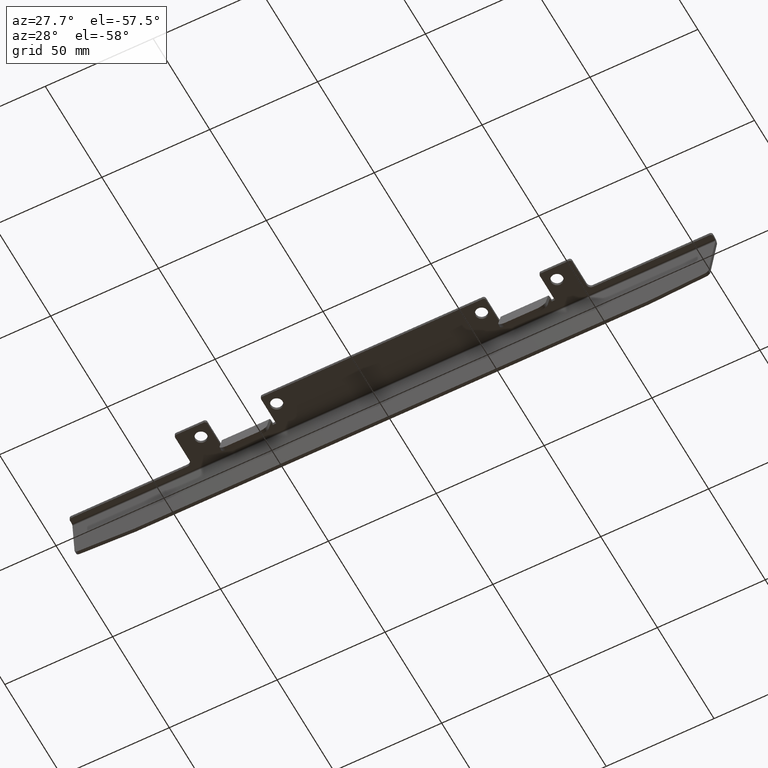
[diagram: clean part render]
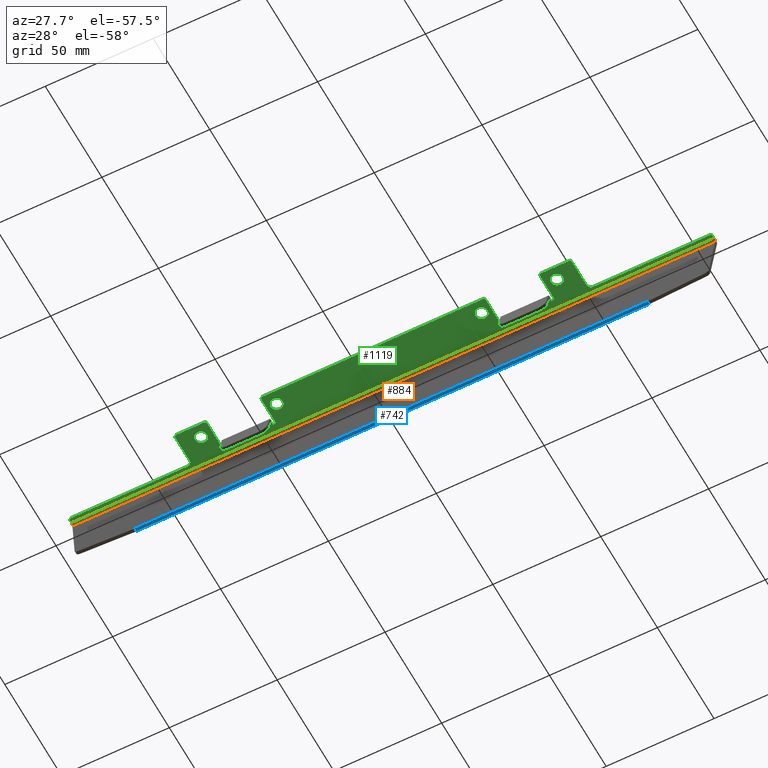
[diagram: same view with three faces highlighted in distinct colors, each labeled with its STEP entity id]
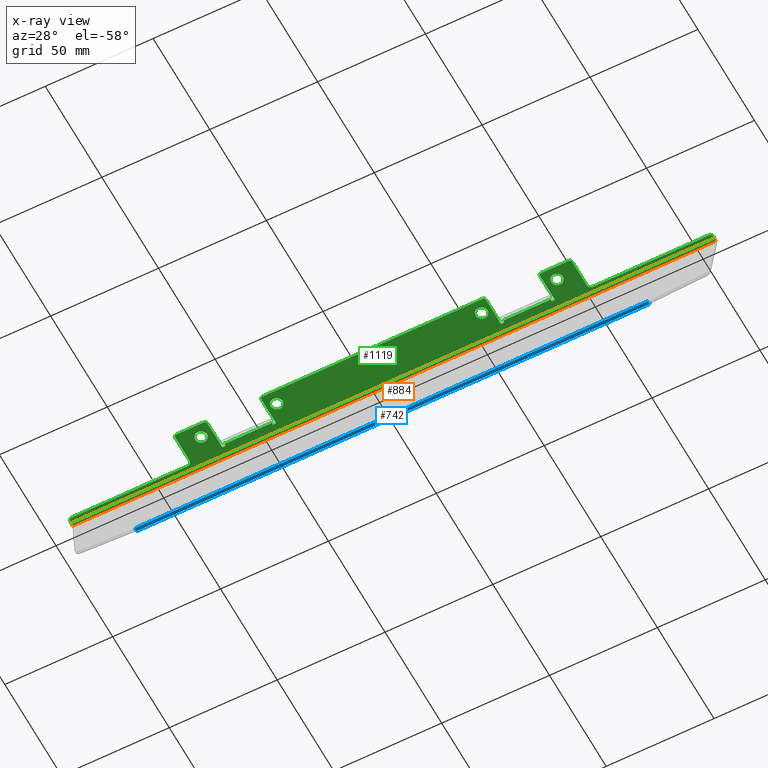
[diagram: x-ray of the same camera — body ghosted, the three highlighted faces saturated]
A machine part, auxiliary view with three faces highlighted in distinct colors.
The next image is the same camera in x-ray (body ghosted, the three faces saturated) — at least one of them is partly hidden behind the body in this view.
Their STEP definitions:

[orange] entity #884 — the highlighted cylindrical surface (edge-blend (fillet) strip) has radius 1 mm, axis along (1, 0, 0).
#21 = EDGE_CURVE ( 'NONE', #1636, #414, #155, .T. ) ;
#98 = LINE ( 'NONE', #460, #1923 ) ;
#148 = CIRCLE ( 'NONE', #2082, 1.000000000000002200 ) ;
#155 = CIRCLE ( 'NONE', #1766, 1.000000000000002200 ) ;
#414 = VERTEX_POINT ( 'NONE', #709 ) ;
#460 = CARTESIAN_POINT ( 'NONE',  ( -149.0000000000000000, 12.56815404527024600, -2.587155742747654100 ) ) ;
#609 = EDGE_CURVE ( 'NONE', #2408, #1636, #98, .T. ) ;
#666 = DIRECTION ( 'NONE',  ( 0.0000000000000000000, 0.0000000000000000000, -1.000000000000000000 ) ) ;
#688 = DIRECTION ( 'NONE',  ( 1.000000000000000000, 0.0000000000000000000, 0.0000000000000000000 ) ) ;
#707 = DIRECTION ( 'NONE',  ( 0.0000000000000000000, 0.9961946980917457700, -0.08715574274765462700 ) ) ;
#709 = CARTESIAN_POINT ( 'NONE',  ( 148.9999999999999400, 11.57195934717849700, -1.499999999999998400 ) ) ;
#761 = CARTESIAN_POINT ( 'NONE',  ( -149.0000000000000000, 11.57195934717849500, -1.500000000000000000 ) ) ;
#789 = ORIENTED_EDGE ( 'NONE', *, *, #2070, .T. ) ;
#790 = CYLINDRICAL_SURFACE ( 'NONE', #2143, 1.000000000000002400 ) ;
#884 = ADVANCED_FACE ( 'NONE', ( #1648 ), #790, .F. ) ;
#947 = DIRECTION ( 'NONE',  ( -1.000000000000000000, -0.0000000000000000000, -0.0000000000000000000 ) ) ;
#986 = DIRECTION ( 'NONE',  ( 1.000000000000000000, 0.0000000000000000000, 0.0000000000000000000 ) ) ;
#993 = DIRECTION ( 'NONE',  ( 0.0000000000000000000, 0.0000000000000000000, -1.000000000000000000 ) ) ;
#1014 = EDGE_LOOP ( 'NONE', ( #789, #2096, #1153, #1717 ) ) ;
#1035 = CARTESIAN_POINT ( 'NONE',  ( 149.0000000000000300, 12.56815404527024800, -2.587155742747656800 ) ) ;
#1153 = ORIENTED_EDGE ( 'NONE', *, *, #609, .T. ) ;
#1165 = VERTEX_POINT ( 'NONE', #2238 ) ;
#1447 = VECTOR ( 'NONE', #947, 1000.000000000000000 ) ;
#1510 = LINE ( 'NONE', #761, #1447 ) ;
#1623 = EDGE_CURVE ( 'NONE', #1165, #2408, #148, .T. ) ;
#1636 = VERTEX_POINT ( 'NONE', #1035 ) ;
#1648 = FACE_OUTER_BOUND ( 'NONE', #1014, .T. ) ;
#1717 = ORIENTED_EDGE ( 'NONE', *, *, #21, .T. ) ;
#1754 = CARTESIAN_POINT ( 'NONE',  ( 148.9999999999999400, 11.57195934717849700, -2.500000000000000400 ) ) ;
#1766 = AXIS2_PLACEMENT_3D ( 'NONE', #1754, #986, #993 ) ;
#1923 = VECTOR ( 'NONE', #2153, 1000.000000000000000 ) ;
#1978 = CARTESIAN_POINT ( 'NONE',  ( -149.0000000000000000, 12.56815404527024600, -2.587155742747655500 ) ) ;
#2002 = CARTESIAN_POINT ( 'NONE',  ( -149.0000000000000000, 11.57195934717849700, -2.500000000000000400 ) ) ;
#2014 = CARTESIAN_POINT ( 'NONE',  ( 149.0000000000000000, 11.57195934717849700, -2.500000000000000400 ) ) ;
#2070 = EDGE_CURVE ( 'NONE', #414, #1165, #1510, .T. ) ;
#2082 = AXIS2_PLACEMENT_3D ( 'NONE', #2002, #2179, #666 ) ;
#2096 = ORIENTED_EDGE ( 'NONE', *, *, #1623, .T. ) ;
#2143 = AXIS2_PLACEMENT_3D ( 'NONE', #2014, #688, #707 ) ;
#2153 = DIRECTION ( 'NONE',  ( 1.000000000000000000, -1.010844195836927400E-018, -1.155400202835925200E-017 ) ) ;
#2179 = DIRECTION ( 'NONE',  ( -1.000000000000000000, -0.0000000000000000000, -0.0000000000000000000 ) ) ;
#2238 = CARTESIAN_POINT ( 'NONE',  ( -149.0000000000000000, 11.57195934717849700, -1.499999999999998400 ) ) ;
#2408 = VERTEX_POINT ( 'NONE', #1978 ) ;

[blue] entity #742 — the highlighted planar face has unit normal (-0, 0.0872, 0.9962).
#16 = EDGE_LOOP ( 'NONE', ( #1819, #588, #1102, #449 ) ) ;
#300 = EDGE_CURVE ( 'NONE', #1194, #1391, #1133, .T. ) ;
#449 = ORIENTED_EDGE ( 'NONE', *, *, #300, .T. ) ;
#486 = CARTESIAN_POINT ( 'NONE',  ( -118.9126781141829100, 11.68233680135199200, -29.92266303992706300 ) ) ;
#588 = ORIENTED_EDGE ( 'NONE', *, *, #1009, .T. ) ;
#620 = CARTESIAN_POINT ( 'NONE',  ( -118.9126781141829100, 10.18804475421436900, -29.79192942580558400 ) ) ;
#646 = VECTOR ( 'NONE', #1063, 1000.000000000000000 ) ;
#742 = ADVANCED_FACE ( 'NONE', ( #1745 ), #2255, .F. ) ;
#758 = DIRECTION ( 'NONE',  ( -1.000000000000000000, 0.0000000000000000000, 0.0000000000000000000 ) ) ;
#1009 = EDGE_CURVE ( 'NONE', #1246, #1551, #1992, .T. ) ;
#1063 = DIRECTION ( 'NONE',  ( -1.000000000000000000, -0.0000000000000000000, -0.0000000000000000000 ) ) ;
#1102 = ORIENTED_EDGE ( 'NONE', *, *, #1127, .F. ) ;
#1127 = EDGE_CURVE ( 'NONE', #1194, #1551, #1562, .T. ) ;
#1133 = LINE ( 'NONE', #1942, #1777 ) ;
#1194 = VERTEX_POINT ( 'NONE', #2072 ) ;
#1246 = VERTEX_POINT ( 'NONE', #620 ) ;
#1391 = VERTEX_POINT ( 'NONE', #2344 ) ;
#1551 = VERTEX_POINT ( 'NONE', #486 ) ;
#1555 = AXIS2_PLACEMENT_3D ( 'NONE', #2423, #1678, #1705 ) ;
#1562 = LINE ( 'NONE', #1889, #2318 ) ;
#1678 = DIRECTION ( 'NONE',  ( -0.0000000000000000000, 0.08715574274765483500, 0.9961946980917458800 ) ) ;
#1705 = DIRECTION ( 'NONE',  ( 0.0000000000000000000, -0.9961946980917457700, 0.08715574274765482100 ) ) ;
#1715 = EDGE_CURVE ( 'NONE', #1391, #1246, #1935, .T. ) ;
#1719 = DIRECTION ( 'NONE',  ( -3.184595155822318500E-016, -0.9961946980917457700, 0.08715574274765482100 ) ) ;
#1745 = FACE_OUTER_BOUND ( 'NONE', #16, .T. ) ;
#1777 = VECTOR ( 'NONE', #1719, 1000.000000000000100 ) ;
#1819 = ORIENTED_EDGE ( 'NONE', *, *, #1715, .T. ) ;
#1838 = CARTESIAN_POINT ( 'NONE',  ( -118.9126781141829100, 11.68233680135198900, -29.92266303992706600 ) ) ;
#1889 = CARTESIAN_POINT ( 'NONE',  ( 0.0000000000000000000, 11.68233680135199200, -29.92266303992706300 ) ) ;
#1935 = LINE ( 'NONE', #2196, #646 ) ;
#1942 = CARTESIAN_POINT ( 'NONE',  ( 118.9126781141828500, 10.18804475421436900, -29.79192942580558400 ) ) ;
#1992 = LINE ( 'NONE', #1838, #2112 ) ;
#2072 = CARTESIAN_POINT ( 'NONE',  ( 118.9126781141828500, 11.68233680135199200, -29.92266303992706300 ) ) ;
#2112 = VECTOR ( 'NONE', #2215, 1000.000000000000100 ) ;
#2196 = CARTESIAN_POINT ( 'NONE',  ( -149.0000000000000000, 10.18804475421436900, -29.79192942580558400 ) ) ;
#2215 = DIRECTION ( 'NONE',  ( -3.184595155822318500E-016, 0.9961946980917457700, -0.08715574274765482100 ) ) ;
#2255 = PLANE ( 'NONE',  #1555 ) ;
#2318 = VECTOR ( 'NONE', #758, 1000.000000000000000 ) ;
#2344 = CARTESIAN_POINT ( 'NONE',  ( 118.9126781141828500, 10.18804475421436900, -29.79192942580558400 ) ) ;
#2423 = CARTESIAN_POINT ( 'NONE',  ( -149.0000000000000000, 11.68233680135198700, -29.92266303992706600 ) ) ;

[green] entity #1119 — the highlighted planar face has unit normal (0, -0, 1).
#17 = VERTEX_POINT ( 'NONE', #2297 ) ;
#33 = EDGE_CURVE ( 'NONE', #17, #414, #2242, .T. ) ;
#34 = VERTEX_POINT ( 'NONE', #1914 ) ;
#37 = ORIENTED_EDGE ( 'NONE', *, *, #369, .F. ) ;
#38 = CARTESIAN_POINT ( 'NONE',  ( -91.00000000000000000, -5.318040652821458100, -1.500000000000000000 ) ) ;
#44 = ORIENTED_EDGE ( 'NONE', *, *, #1509, .T. ) ;
#46 = DIRECTION ( 'NONE',  ( -0.0000000000000000000, 0.0000000000000000000, -1.000000000000000000 ) ) ;
#47 = EDGE_CURVE ( 'NONE', #535, #1696, #231, .T. ) ;
#75 = VERTEX_POINT ( 'NONE', #812 ) ;
#88 = VERTEX_POINT ( 'NONE', #2309 ) ;
#89 = AXIS2_PLACEMENT_3D ( 'NONE', #1502, #1689, #1870 ) ;
#93 = VERTEX_POINT ( 'NONE', #1957 ) ;
#102 = CARTESIAN_POINT ( 'NONE',  ( 52.09999999999999400, -6.318040652821459000, -1.500000000000000000 ) ) ;
#103 = VERTEX_POINT ( 'NONE', #1786 ) ;
#118 = AXIS2_PLACEMENT_3D ( 'NONE', #928, #1505, #2254 ) ;
#119 = DIRECTION ( 'NONE',  ( 1.000000000000000000, -0.0000000000000000000, -0.0000000000000000000 ) ) ;
#133 = AXIS2_PLACEMENT_3D ( 'NONE', #1432, #1262, #505 ) ;
#150 = EDGE_CURVE ( 'NONE', #280, #1553, #1572, .T. ) ;
#153 = CARTESIAN_POINT ( 'NONE',  ( 52.09999999999999400, 7.871959347178525400, -1.500000000000000000 ) ) ;
#156 = CARTESIAN_POINT ( 'NONE',  ( 78.09999999999999400, -5.318040652821459000, -1.500000000000000000 ) ) ;
#165 = VERTEX_POINT ( 'NONE', #1405 ) ;
#170 = EDGE_LOOP ( 'NONE', ( #413, #1593 ) ) ;
#171 = EDGE_LOOP ( 'NONE', ( #1904, #1163 ) ) ;
#174 = DIRECTION ( 'NONE',  ( -0.0000000000000000000, -1.000000000000000000, -0.0000000000000000000 ) ) ;
#190 = ORIENTED_EDGE ( 'NONE', *, *, #1837, .T. ) ;
#200 = VECTOR ( 'NONE', #2032, 1000.000000000000000 ) ;
#210 = CARTESIAN_POINT ( 'NONE',  ( 51.09999999999999400, -5.318040652821459000, -1.500000000000000000 ) ) ;
#220 = DIRECTION ( 'NONE',  ( 1.000000000000000000, -0.0000000000000000000, -0.0000000000000000000 ) ) ;
#222 = VERTEX_POINT ( 'NONE', #1770 ) ;
#231 = LINE ( 'NONE', #1936, #796 ) ;
#241 = LINE ( 'NONE', #1997, #661 ) ;
#244 = CARTESIAN_POINT ( 'NONE',  ( 77.09999999999999400, -5.318040652821459000, -1.500000000000000000 ) ) ;
#247 = ORIENTED_EDGE ( 'NONE', *, *, #33, .F. ) ;
#251 = CARTESIAN_POINT ( 'NONE',  ( -82.49999999999998600, -0.5280406528214614000, -1.500000000000000000 ) ) ;
#268 = CARTESIAN_POINT ( 'NONE',  ( 92.00000000000000000, -5.318040652821459900, -1.500000000000000000 ) ) ;
#278 = EDGE_LOOP ( 'NONE', ( #190, #1675 ) ) ;
#280 = VERTEX_POINT ( 'NONE', #1245 ) ;
#281 = DIRECTION ( 'NONE',  ( 1.000000000000000000, 0.0000000000000000000, 0.0000000000000000000 ) ) ;
#286 = CIRCLE ( 'NONE', #1420, 1.000000000000000900 ) ;
#290 = FACE_BOUND ( 'NONE', #1733, .T. ) ;
#291 = DIRECTION ( 'NONE',  ( 0.0000000000000000000, 1.000000000000000000, 0.0000000000000000000 ) ) ;
#332 = EDGE_CURVE ( 'NONE', #535, #1376, #1872, .T. ) ;
#333 = VERTEX_POINT ( 'NONE', #532 ) ;
#335 = ORIENTED_EDGE ( 'NONE', *, *, #2070, .F. ) ;
#343 = VERTEX_POINT ( 'NONE', #1273 ) ;
#345 = DIRECTION ( 'NONE',  ( 1.000000000000000000, 0.0000000000000000000, 0.0000000000000000000 ) ) ;
#348 = VERTEX_POINT ( 'NONE', #1470 ) ;
#349 = CARTESIAN_POINT ( 'NONE',  ( 93.99999999999998600, 9.471959347178485100, -1.500000000000000000 ) ) ;
#352 = CARTESIAN_POINT ( 'NONE',  ( 91.00000000000000000, -5.318040652821459900, -1.500000000000000000 ) ) ;
#353 = EDGE_CURVE ( 'NONE', #1553, #75, #241, .T. ) ;
#354 = LINE ( 'NONE', #1976, #619 ) ;
#355 = CIRCLE ( 'NONE', #1121, 1.000000000000000900 ) ;
#369 = EDGE_CURVE ( 'NONE', #1085, #34, #2227, .T. ) ;
#380 = ORIENTED_EDGE ( 'NONE', *, *, #2285, .F. ) ;
#384 = DIRECTION ( 'NONE',  ( 0.0000000000000000000, -1.000000000000000000, 0.0000000000000000000 ) ) ;
#391 = LINE ( 'NONE', #1639, #717 ) ;
#394 = CARTESIAN_POINT ( 'NONE',  ( -91.99999999999998600, 9.471959347178485100, -1.500000000000000000 ) ) ;
#399 = ORIENTED_EDGE ( 'NONE', *, *, #150, .F. ) ;
#413 = ORIENTED_EDGE ( 'NONE', *, *, #906, .T. ) ;
#414 = VERTEX_POINT ( 'NONE', #709 ) ;
#418 = DIRECTION ( 'NONE',  ( 0.0000000000000000000, 1.000000000000000000, 0.0000000000000000000 ) ) ;
#448 = EDGE_CURVE ( 'NONE', #1571, #333, #1214, .T. ) ;
#456 = ORIENTED_EDGE ( 'NONE', *, *, #1525, .F. ) ;
#457 = LINE ( 'NONE', #931, #2401 ) ;
#466 = EDGE_CURVE ( 'NONE', #614, #1367, #658, .T. ) ;
#475 = LINE ( 'NONE', #989, #2384 ) ;
#476 = DIRECTION ( 'NONE',  ( 1.000000000000000000, 0.0000000000000000000, 0.0000000000000000000 ) ) ;
#484 = CARTESIAN_POINT ( 'NONE',  ( -148.0000000000000000, 10.47195934717849800, -1.500000000000000000 ) ) ;
#498 = CARTESIAN_POINT ( 'NONE',  ( -92.00000000000000000, -5.318040652821456300, -1.500000000000000000 ) ) ;
#499 = EDGE_CURVE ( 'NONE', #1596, #1439, #1865, .T. ) ;
#500 = CARTESIAN_POINT ( 'NONE',  ( 51.09999999999999400, -6.318040652821462500, -1.500000000000000000 ) ) ;
#505 = DIRECTION ( 'NONE',  ( 1.000000000000000000, 0.0000000000000000000, 0.0000000000000000000 ) ) ;
#506 = LINE ( 'NONE', #1537, #677 ) ;
#517 = CARTESIAN_POINT ( 'NONE',  ( -85.24999999999997200, -0.5280406528214610700, -1.500000000000000000 ) ) ;
#523 = VERTEX_POINT ( 'NONE', #1848 ) ;
#524 = VECTOR ( 'NONE', #1974, 1000.000000000000000 ) ;
#532 = CARTESIAN_POINT ( 'NONE',  ( -75.59999999999998000, 6.871959347178529900, -1.499999999999996200 ) ) ;
#533 = EDGE_CURVE ( 'NONE', #2134, #93, #901, .T. ) ;
#535 = VERTEX_POINT ( 'NONE', #1488 ) ;
#539 = EDGE_CURVE ( 'NONE', #1047, #280, #1546, .T. ) ;
#547 = DIRECTION ( 'NONE',  ( 0.0000000000000000000, 0.0000000000000000000, 1.000000000000000000 ) ) ;
#556 = ORIENTED_EDGE ( 'NONE', *, *, #2084, .F. ) ;
#560 = ORIENTED_EDGE ( 'NONE', *, *, #1512, .F. ) ;
#563 = DIRECTION ( 'NONE',  ( 1.000000000000000000, 0.0000000000000000000, 0.0000000000000000000 ) ) ;
#571 = LINE ( 'NONE', #1875, #1739 ) ;
#579 = EDGE_CURVE ( 'NONE', #348, #103, #1600, .T. ) ;
#584 = LINE ( 'NONE', #1688, #1524 ) ;
#593 = CIRCLE ( 'NONE', #806, 2.750000000000009300 ) ;
#602 = AXIS2_PLACEMENT_3D ( 'NONE', #1419, #1205, #281 ) ;
#603 = VERTEX_POINT ( 'NONE', #1386 ) ;
#614 = VERTEX_POINT ( 'NONE', #268 ) ;
#619 = VECTOR ( 'NONE', #1227, 1000.000000000000000 ) ;
#630 = DIRECTION ( 'NONE',  ( 1.000000000000000000, -3.329603600723238800E-017, -0.0000000000000000000 ) ) ;
#641 = DIRECTION ( 'NONE',  ( 1.000000000000000000, 0.0000000000000000000, 0.0000000000000000000 ) ) ;
#658 = CIRCLE ( 'NONE', #1113, 1.000000000000000900 ) ;
#659 = DIRECTION ( 'NONE',  ( -0.0000000000000000000, 0.0000000000000000000, -1.000000000000000000 ) ) ;
#660 = ORIENTED_EDGE ( 'NONE', *, *, #2361, .F. ) ;
#661 = VECTOR ( 'NONE', #119, 1000.000000000000000 ) ;
#663 = DIRECTION ( 'NONE',  ( 1.000000000000000000, 0.0000000000000000000, 0.0000000000000000000 ) ) ;
#671 = CARTESIAN_POINT ( 'NONE',  ( 52.09999999999999400, -5.318040652821459000, -1.500000000000000000 ) ) ;
#672 = ORIENTED_EDGE ( 'NONE', *, *, #2211, .F. ) ;
#673 = CIRCLE ( 'NONE', #1353, 2.000000000000001800 ) ;
#677 = VECTOR ( 'NONE', #220, 1000.000000000000000 ) ;
#678 = FACE_BOUND ( 'NONE', #170, .T. ) ;
#681 = EDGE_CURVE ( 'NONE', #1165, #93, #584, .T. ) ;
#699 = EDGE_CURVE ( 'NONE', #1314, #1322, #2363, .T. ) ;
#704 = EDGE_CURVE ( 'NONE', #2080, #1047, #457, .T. ) ;
#709 = CARTESIAN_POINT ( 'NONE',  ( 148.9999999999999400, 11.57195934717849700, -1.499999999999998400 ) ) ;
#717 = VECTOR ( 'NONE', #1627, 1000.000000000000000 ) ;
#732 = CARTESIAN_POINT ( 'NONE',  ( 53.59999999999999400, 6.871959347178529900, -1.499999999999996200 ) ) ;
#741 = CARTESIAN_POINT ( 'NONE',  ( -93.99999999999998600, 7.471959347178486000, -1.500000000000000000 ) ) ;
#759 = AXIS2_PLACEMENT_3D ( 'NONE', #251, #1050, #855 ) ;
#761 = CARTESIAN_POINT ( 'NONE',  ( -149.0000000000000000, 11.57195934717849500, -1.500000000000000000 ) ) ;
#762 = ORIENTED_EDGE ( 'NONE', *, *, #2178, .F. ) ;
#763 = VECTOR ( 'NONE', #1825, 1000.000000000000000 ) ;
#771 = CIRCLE ( 'NONE', #602, 2.749999999999988500 ) ;
#772 = VECTOR ( 'NONE', #1586, 1000.000000000000000 ) ;
#778 = CARTESIAN_POINT ( 'NONE',  ( 79.75000000000000000, -0.5280406528214610700, -1.500000000000000000 ) ) ;
#785 = CARTESIAN_POINT ( 'NONE',  ( -53.59999999999999400, 6.871959347178530700, -1.500000000000000000 ) ) ;
#795 = CARTESIAN_POINT ( 'NONE',  ( 85.24999999999997200, -0.5280406528214614000, -1.500000000000000000 ) ) ;
#796 = VECTOR ( 'NONE', #630, 1000.000000000000000 ) ;
#806 = AXIS2_PLACEMENT_3D ( 'NONE', #2220, #547, #1090 ) ;
#812 = CARTESIAN_POINT ( 'NONE',  ( 77.09999999999999400, 7.871959347178525400, -1.500000000000000000 ) ) ;
#819 = CARTESIAN_POINT ( 'NONE',  ( 149.0000000000000000, 11.57195934717849500, -1.500000000000000000 ) ) ;
#820 = EDGE_CURVE ( 'NONE', #88, #1785, #1951, .T. ) ;
#827 = ORIENTED_EDGE ( 'NONE', *, *, #1940, .T. ) ;
#842 = CARTESIAN_POINT ( 'NONE',  ( -47.49999999999998600, -0.4280406528214620300, -1.500000000000000000 ) ) ;
#843 = VERTEX_POINT ( 'NONE', #2277 ) ;
#845 = ORIENTED_EDGE ( 'NONE', *, *, #2272, .F. ) ;
#855 = DIRECTION ( 'NONE',  ( -1.000000000000000000, 0.0000000000000000000, 0.0000000000000000000 ) ) ;
#865 = VECTOR ( 'NONE', #1299, 1000.000000000000000 ) ;
#883 = VECTOR ( 'NONE', #1602, 1000.000000000000000 ) ;
#892 = AXIS2_PLACEMENT_3D ( 'NONE', #484, #659, #476 ) ;
#901 = CIRCLE ( 'NONE', #892, 1.000000000000000900 ) ;
#906 = EDGE_CURVE ( 'NONE', #1850, #1070, #1147, .T. ) ;
#914 = CARTESIAN_POINT ( 'NONE',  ( 82.49999999999998600, -0.5280406528214614000, -1.500000000000000000 ) ) ;
#928 = CARTESIAN_POINT ( 'NONE',  ( 0.0000000000000000000, 0.0000000000000000000, -1.500000000000000000 ) ) ;
#931 = CARTESIAN_POINT ( 'NONE',  ( 53.59999999999999400, 6.871959347178530700, -1.500000000000000000 ) ) ;
#947 = DIRECTION ( 'NONE',  ( -1.000000000000000000, -0.0000000000000000000, -0.0000000000000000000 ) ) ;
#949 = CIRCLE ( 'NONE', #2057, 1.000000000000000900 ) ;
#960 = DIRECTION ( 'NONE',  ( 0.0000000000000000000, 1.000000000000000000, 0.0000000000000000000 ) ) ;
#963 = ORIENTED_EDGE ( 'NONE', *, *, #1924, .F. ) ;
#968 = ORIENTED_EDGE ( 'NONE', *, *, #448, .F. ) ;
#971 = LINE ( 'NONE', #2321, #772 ) ;
#973 = CARTESIAN_POINT ( 'NONE',  ( -52.09999999999999400, -5.318040652821462500, -1.500000000000000000 ) ) ;
#979 = AXIS2_PLACEMENT_3D ( 'NONE', #1822, #2397, #1046 ) ;
#983 = EDGE_CURVE ( 'NONE', #88, #843, #673, .T. ) ;
#989 = CARTESIAN_POINT ( 'NONE',  ( -52.09999999999999400, 7.871959347178525400, -1.500000000000000000 ) ) ;
#999 = AXIS2_PLACEMENT_3D ( 'NONE', #1039, #1237, #663 ) ;
#1003 = CARTESIAN_POINT ( 'NONE',  ( 53.59999999999999400, 6.871959347178530700, -1.500000000000000000 ) ) ;
#1012 = AXIS2_PLACEMENT_3D ( 'NONE', #156, #1478, #345 ) ;
#1016 = DIRECTION ( 'NONE',  ( -0.0000000000000000000, 0.0000000000000000000, -1.000000000000000000 ) ) ;
#1019 = ORIENTED_EDGE ( 'NONE', *, *, #1336, .F. ) ;
#1030 = ORIENTED_EDGE ( 'NONE', *, *, #1281, .T. ) ;
#1039 = CARTESIAN_POINT ( 'NONE',  ( 93.99999999999998600, 7.471959347178486000, -1.500000000000000000 ) ) ;
#1046 = DIRECTION ( 'NONE',  ( 1.000000000000000000, 0.0000000000000000000, 0.0000000000000000000 ) ) ;
#1047 = VERTEX_POINT ( 'NONE', #732 ) ;
#1050 = DIRECTION ( 'NONE',  ( 0.0000000000000000000, 0.0000000000000000000, 1.000000000000000000 ) ) ;
#1055 = DIRECTION ( 'NONE',  ( -1.000000000000000000, 0.0000000000000000000, 0.0000000000000000000 ) ) ;
#1061 = FACE_BOUND ( 'NONE', #171, .T. ) ;
#1070 = VERTEX_POINT ( 'NONE', #517 ) ;
#1071 = CARTESIAN_POINT ( 'NONE',  ( -82.49999999999998600, -0.5280406528214614000, -1.500000000000000000 ) ) ;
#1085 = VERTEX_POINT ( 'NONE', #349 ) ;
#1090 = DIRECTION ( 'NONE',  ( 1.000000000000000000, 0.0000000000000000000, 0.0000000000000000000 ) ) ;
#1100 = ORIENTED_EDGE ( 'NONE', *, *, #499, .T. ) ;
#1112 = VERTEX_POINT ( 'NONE', #1703 ) ;
#1113 = AXIS2_PLACEMENT_3D ( 'NONE', #352, #2228, #2409 ) ;
#1117 = CARTESIAN_POINT ( 'NONE',  ( -79.75000000000000000, -0.5280406528214614000, -1.500000000000000000 ) ) ;
#1119 = ADVANCED_FACE ( 'NONE', ( #678, #2064, #290, #1061, #1884 ), #2055, .F. ) ;
#1121 = AXIS2_PLACEMENT_3D ( 'NONE', #38, #46, #1368 ) ;
#1122 = LINE ( 'NONE', #1952, #883 ) ;
#1147 = CIRCLE ( 'NONE', #2101, 2.749999999999988500 ) ;
#1155 = EDGE_CURVE ( 'NONE', #523, #1571, #571, .T. ) ;
#1157 = DIRECTION ( 'NONE',  ( 1.000000000000000000, -5.821219718042973500E-017, 0.0000000000000000000 ) ) ;
#1163 = ORIENTED_EDGE ( 'NONE', *, *, #2299, .T. ) ;
#1165 = VERTEX_POINT ( 'NONE', #2238 ) ;
#1166 = ORIENTED_EDGE ( 'NONE', *, *, #579, .T. ) ;
#1174 = DIRECTION ( 'NONE',  ( 1.000000000000000000, -0.0000000000000000000, -0.0000000000000000000 ) ) ;
#1197 = EDGE_CURVE ( 'NONE', #603, #523, #1449, .T. ) ;
#1203 = CARTESIAN_POINT ( 'NONE',  ( 75.59999999999998000, 6.871959347178530700, -1.500000000000000000 ) ) ;
#1205 = DIRECTION ( 'NONE',  ( 0.0000000000000000000, 0.0000000000000000000, 1.000000000000000000 ) ) ;
#1214 = LINE ( 'NONE', #2027, #865 ) ;
#1227 = DIRECTION ( 'NONE',  ( -0.0000000000000000000, -1.000000000000000000, -0.0000000000000000000 ) ) ;
#1231 = VECTOR ( 'NONE', #1986, 1000.000000000000000 ) ;
#1237 = DIRECTION ( 'NONE',  ( 0.0000000000000000000, -0.0000000000000000000, 1.000000000000000000 ) ) ;
#1245 = CARTESIAN_POINT ( 'NONE',  ( 75.59999999999998000, 6.871959347178529900, -1.500000000000002700 ) ) ;
#1262 = DIRECTION ( 'NONE',  ( -0.0000000000000000000, 0.0000000000000000000, -1.000000000000000000 ) ) ;
#1264 = VECTOR ( 'NONE', #960, 1000.000000000000000 ) ;
#1272 = VERTEX_POINT ( 'NONE', #1920 ) ;
#1273 = CARTESIAN_POINT ( 'NONE',  ( -78.09999999999999400, -6.318040652821459000, -1.500000000000000000 ) ) ;
#1281 = EDGE_CURVE ( 'NONE', #1529, #1696, #2386, .T. ) ;
#1285 = AXIS2_PLACEMENT_3D ( 'NONE', #842, #1793, #1415 ) ;
#1294 = VECTOR ( 'NONE', #291, 1000.000000000000000 ) ;
#1299 = DIRECTION ( 'NONE',  ( -0.0000000000000000000, -1.000000000000000000, -0.0000000000000000000 ) ) ;
#1304 = AXIS2_PLACEMENT_3D ( 'NONE', #210, #1564, #1346 ) ;
#1314 = VERTEX_POINT ( 'NONE', #795 ) ;
#1321 = DIRECTION ( 'NONE',  ( 1.000000000000000000, 0.0000000000000000000, 0.0000000000000000000 ) ) ;
#1322 = VERTEX_POINT ( 'NONE', #778 ) ;
#1324 = CARTESIAN_POINT ( 'NONE',  ( -53.59999999999999400, 6.871959347178529900, -1.500000000000002700 ) ) ;
#1325 = ORIENTED_EDGE ( 'NONE', *, *, #2155, .T. ) ;
#1336 = EDGE_CURVE ( 'NONE', #2008, #165, #2208, .T. ) ;
#1338 = ORIENTED_EDGE ( 'NONE', *, *, #47, .F. ) ;
#1346 = DIRECTION ( 'NONE',  ( 1.000000000000000000, 0.0000000000000000000, 0.0000000000000000000 ) ) ;
#1353 = AXIS2_PLACEMENT_3D ( 'NONE', #741, #2396, #1658 ) ;
#1367 = VERTEX_POINT ( 'NONE', #2329 ) ;
#1368 = DIRECTION ( 'NONE',  ( 1.000000000000000000, 0.0000000000000000000, 0.0000000000000000000 ) ) ;
#1376 = VERTEX_POINT ( 'NONE', #973 ) ;
#1386 = CARTESIAN_POINT ( 'NONE',  ( -77.09999999999999400, -5.318040652821459000, -1.500000000000000000 ) ) ;
#1405 = CARTESIAN_POINT ( 'NONE',  ( -53.59999999999999400, 7.871959347178525400, -1.500000000000000000 ) ) ;
#1406 = EDGE_CURVE ( 'NONE', #17, #34, #949, .T. ) ;
#1415 = DIRECTION ( 'NONE',  ( -1.000000000000000000, 0.0000000000000000000, 0.0000000000000000000 ) ) ;
#1419 = CARTESIAN_POINT ( 'NONE',  ( 82.49999999999998600, -0.5280406528214614000, -1.500000000000000000 ) ) ;
#1420 = AXIS2_PLACEMENT_3D ( 'NONE', #2387, #1829, #1453 ) ;
#1432 = CARTESIAN_POINT ( 'NONE',  ( -51.09999999999999400, -5.318040652821462500, -1.500000000000000000 ) ) ;
#1439 = VERTEX_POINT ( 'NONE', #244 ) ;
#1447 = VECTOR ( 'NONE', #947, 1000.000000000000000 ) ;
#1449 = LINE ( 'NONE', #1514, #1264 ) ;
#1453 = DIRECTION ( 'NONE',  ( 1.000000000000000000, 0.0000000000000000000, 0.0000000000000000000 ) ) ;
#1465 = VECTOR ( 'NONE', #1891, 1000.000000000000000 ) ;
#1470 = CARTESIAN_POINT ( 'NONE',  ( -44.74999999999997900, -0.4280406528214620300, -1.500000000000000000 ) ) ;
#1478 = DIRECTION ( 'NONE',  ( -0.0000000000000000000, 0.0000000000000000000, -1.000000000000000000 ) ) ;
#1481 = EDGE_CURVE ( 'NONE', #1070, #1850, #1789, .T. ) ;
#1488 = CARTESIAN_POINT ( 'NONE',  ( -51.09999999999999400, -6.318040652821459000, -1.500000000000000000 ) ) ;
#1499 = VECTOR ( 'NONE', #1796, 1000.000000000000000 ) ;
#1502 = CARTESIAN_POINT ( 'NONE',  ( -47.49999999999998600, -0.4280406528214620300, -1.500000000000000000 ) ) ;
#1505 = DIRECTION ( 'NONE',  ( 0.0000000000000000000, -0.0000000000000000000, 1.000000000000000000 ) ) ;
#1509 = EDGE_CURVE ( 'NONE', #1085, #2231, #1560, .T. ) ;
#1510 = LINE ( 'NONE', #761, #1447 ) ;
#1512 = EDGE_CURVE ( 'NONE', #75, #1439, #354, .T. ) ;
#1514 = CARTESIAN_POINT ( 'NONE',  ( -77.09999999999999400, -6.318040652821459000, -1.500000000000000000 ) ) ;
#1521 = ORIENTED_EDGE ( 'NONE', *, *, #2125, .F. ) ;
#1523 = ORIENTED_EDGE ( 'NONE', *, *, #1406, .T. ) ;
#1524 = VECTOR ( 'NONE', #384, 1000.000000000000000 ) ;
#1525 = EDGE_CURVE ( 'NONE', #1529, #2036, #1735, .T. ) ;
#1529 = VERTEX_POINT ( 'NONE', #671 ) ;
#1537 = CARTESIAN_POINT ( 'NONE',  ( -53.59999999999999400, 6.871959347178530700, -1.500000000000000000 ) ) ;
#1539 = VERTEX_POINT ( 'NONE', #1609 ) ;
#1546 = LINE ( 'NONE', #1003, #524 ) ;
#1553 = VERTEX_POINT ( 'NONE', #2339 ) ;
#1557 = CARTESIAN_POINT ( 'NONE',  ( -148.0000000000000000, 9.471959347178495700, -1.500000000000000000 ) ) ;
#1560 = CIRCLE ( 'NONE', #999, 2.000000000000001800 ) ;
#1564 = DIRECTION ( 'NONE',  ( -0.0000000000000000000, 0.0000000000000000000, -1.000000000000000000 ) ) ;
#1571 = VERTEX_POINT ( 'NONE', #2170 ) ;
#1572 = LINE ( 'NONE', #1203, #1499 ) ;
#1586 = DIRECTION ( 'NONE',  ( -0.0000000000000000000, -1.000000000000000000, -0.0000000000000000000 ) ) ;
#1593 = ORIENTED_EDGE ( 'NONE', *, *, #1481, .T. ) ;
#1596 = VERTEX_POINT ( 'NONE', #1605 ) ;
#1600 = CIRCLE ( 'NONE', #1285, 2.750000000000009300 ) ;
#1602 = DIRECTION ( 'NONE',  ( 1.000000000000000000, 5.821219718042973500E-017, -0.0000000000000000000 ) ) ;
#1605 = CARTESIAN_POINT ( 'NONE',  ( 78.09999999999999400, -6.318040652821459000, -1.500000000000000000 ) ) ;
#1609 = CARTESIAN_POINT ( 'NONE',  ( -91.00000000000000000, -6.318040652821459900, -1.500000000000000000 ) ) ;
#1627 = DIRECTION ( 'NONE',  ( -8.788972645860989200E-016, 1.000000000000000000, -0.0000000000000000000 ) ) ;
#1631 = CARTESIAN_POINT ( 'NONE',  ( 91.99999999999998600, 9.471959347178485100, -1.500000000000000000 ) ) ;
#1639 = CARTESIAN_POINT ( 'NONE',  ( 91.99999999999998600, 9.471959347178485100, -1.500000000000000000 ) ) ;
#1658 = DIRECTION ( 'NONE',  ( 1.000000000000000000, 0.0000000000000000000, 0.0000000000000000000 ) ) ;
#1675 = ORIENTED_EDGE ( 'NONE', *, *, #2383, .T. ) ;
#1688 = CARTESIAN_POINT ( 'NONE',  ( -149.0000000000000000, 11.57195934717849500, -1.500000000000000000 ) ) ;
#1689 = DIRECTION ( 'NONE',  ( 0.0000000000000000000, 0.0000000000000000000, 1.000000000000000000 ) ) ;
#1696 = VERTEX_POINT ( 'NONE', #500 ) ;
#1703 = CARTESIAN_POINT ( 'NONE',  ( 44.74999999999997900, -0.4280406528214617000, -1.500000000000000000 ) ) ;
#1733 = EDGE_LOOP ( 'NONE', ( #1166, #827 ) ) ;
#1735 = LINE ( 'NONE', #102, #1294 ) ;
#1739 = VECTOR ( 'NONE', #1321, 1000.000000000000000 ) ;
#1740 = EDGE_CURVE ( 'NONE', #603, #343, #286, .T. ) ;
#1741 = VECTOR ( 'NONE', #2130, 1000.000000000000000 ) ;
#1749 = CARTESIAN_POINT ( 'NONE',  ( 77.09999999999999400, -6.318040652821459000, -1.500000000000000000 ) ) ;
#1763 = CARTESIAN_POINT ( 'NONE',  ( 148.0000000000000000, 10.47195934717849800, -1.500000000000000000 ) ) ;
#1770 = CARTESIAN_POINT ( 'NONE',  ( 50.24999999999999300, -0.4280406528214620300, -1.500000000000000000 ) ) ;
#1785 = VERTEX_POINT ( 'NONE', #498 ) ;
#1786 = CARTESIAN_POINT ( 'NONE',  ( -50.24999999999999300, -0.4280406528214617000, -1.500000000000000000 ) ) ;
#1789 = CIRCLE ( 'NONE', #759, 2.749999999999988500 ) ;
#1793 = DIRECTION ( 'NONE',  ( 0.0000000000000000000, 0.0000000000000000000, 1.000000000000000000 ) ) ;
#1796 = DIRECTION ( 'NONE',  ( 0.0000000000000000000, 1.000000000000000000, 0.0000000000000000000 ) ) ;
#1822 = CARTESIAN_POINT ( 'NONE',  ( 47.49999999999998600, -0.4280406528214620300, -1.500000000000000000 ) ) ;
#1825 = DIRECTION ( 'NONE',  ( 1.000000000000000000, 1.826024711554533400E-016, 0.0000000000000000000 ) ) ;
#1829 = DIRECTION ( 'NONE',  ( -0.0000000000000000000, 0.0000000000000000000, -1.000000000000000000 ) ) ;
#1837 = EDGE_CURVE ( 'NONE', #222, #1112, #593, .T. ) ;
#1848 = CARTESIAN_POINT ( 'NONE',  ( -77.09999999999999400, 7.871959347178525400, -1.500000000000000000 ) ) ;
#1850 = VERTEX_POINT ( 'NONE', #1117 ) ;
#1858 = DIRECTION ( 'NONE',  ( 0.0000000000000000000, 0.0000000000000000000, 1.000000000000000000 ) ) ;
#1865 = CIRCLE ( 'NONE', #1012, 1.000000000000000900 ) ;
#1870 = DIRECTION ( 'NONE',  ( -1.000000000000000000, 0.0000000000000000000, 0.0000000000000000000 ) ) ;
#1872 = CIRCLE ( 'NONE', #133, 1.000000000000000900 ) ;
#1875 = CARTESIAN_POINT ( 'NONE',  ( -77.09999999999999400, 7.871959347178525400, -1.500000000000000000 ) ) ;
#1877 = CARTESIAN_POINT ( 'NONE',  ( 52.09999999999999400, 7.871959347178525400, -1.500000000000000000 ) ) ;
#1884 = FACE_OUTER_BOUND ( 'NONE', #2052, .T. ) ;
#1888 = ORIENTED_EDGE ( 'NONE', *, *, #533, .T. ) ;
#1891 = DIRECTION ( 'NONE',  ( -8.788972645860989200E-016, -1.000000000000000000, 0.0000000000000000000 ) ) ;
#1901 = ORIENTED_EDGE ( 'NONE', *, *, #1740, .T. ) ;
#1904 = ORIENTED_EDGE ( 'NONE', *, *, #699, .T. ) ;
#1912 = LINE ( 'NONE', #2139, #1231 ) ;
#1914 = CARTESIAN_POINT ( 'NONE',  ( 148.0000000000000000, 9.471959347178495700, -1.500000000000000000 ) ) ;
#1919 = ORIENTED_EDGE ( 'NONE', *, *, #820, .F. ) ;
#1920 = CARTESIAN_POINT ( 'NONE',  ( -52.09999999999999400, 7.871959347178525400, -1.500000000000000000 ) ) ;
#1924 = EDGE_CURVE ( 'NONE', #2036, #2080, #2381, .T. ) ;
#1925 = ORIENTED_EDGE ( 'NONE', *, *, #983, .T. ) ;
#1936 = CARTESIAN_POINT ( 'NONE',  ( 0.0000000000000000000, -6.318040652821460800, -1.500000000000000000 ) ) ;
#1940 = EDGE_CURVE ( 'NONE', #103, #348, #2315, .T. ) ;
#1951 = LINE ( 'NONE', #394, #1465 ) ;
#1952 = CARTESIAN_POINT ( 'NONE',  ( -77.09999999999999400, -6.318040652821459000, -1.500000000000000000 ) ) ;
#1955 = ORIENTED_EDGE ( 'NONE', *, *, #539, .F. ) ;
#1957 = CARTESIAN_POINT ( 'NONE',  ( -149.0000000000000000, 10.47195934717849800, -1.500000000000000000 ) ) ;
#1974 = DIRECTION ( 'NONE',  ( 1.000000000000000000, 0.0000000000000000000, 0.0000000000000000000 ) ) ;
#1976 = CARTESIAN_POINT ( 'NONE',  ( 77.09999999999999400, -6.318040652821459000, -1.500000000000000000 ) ) ;
#1986 = DIRECTION ( 'NONE',  ( 1.000000000000000000, -1.826024711554533400E-016, -0.0000000000000000000 ) ) ;
#1997 = CARTESIAN_POINT ( 'NONE',  ( 77.09999999999999400, 7.871959347178525400, -1.500000000000000000 ) ) ;
#2008 = VERTEX_POINT ( 'NONE', #1324 ) ;
#2027 = CARTESIAN_POINT ( 'NONE',  ( -75.59999999999998000, 6.871959347178530700, -1.500000000000000000 ) ) ;
#2032 = DIRECTION ( 'NONE',  ( 1.000000000000000000, 0.0000000000000000000, 0.0000000000000000000 ) ) ;
#2036 = VERTEX_POINT ( 'NONE', #1877 ) ;
#2052 = EDGE_LOOP ( 'NONE', ( #845, #1888, #2373, #335, #247, #1523, #37, #44, #660, #2232, #1521, #1100, #560, #2421, #399, #1955, #2271, #963, #456, #1030, #1338, #2230, #380, #762, #1019, #556, #968, #2403, #2426, #1901, #672, #1325, #1919, #1925 ) ) ;
#2055 = PLANE ( 'NONE',  #118 ) ;
#2057 = AXIS2_PLACEMENT_3D ( 'NONE', #1763, #1016, #641 ) ;
#2064 = FACE_BOUND ( 'NONE', #278, .T. ) ;
#2070 = EDGE_CURVE ( 'NONE', #414, #1165, #1510, .T. ) ;
#2080 = VERTEX_POINT ( 'NONE', #2284 ) ;
#2084 = EDGE_CURVE ( 'NONE', #333, #2008, #506, .T. ) ;
#2101 = AXIS2_PLACEMENT_3D ( 'NONE', #1071, #2181, #1055 ) ;
#2125 = EDGE_CURVE ( 'NONE', #1596, #1367, #2265, .T. ) ;
#2130 = DIRECTION ( 'NONE',  ( -0.0000000000000000000, 1.000000000000000000, -0.0000000000000000000 ) ) ;
#2134 = VERTEX_POINT ( 'NONE', #1557 ) ;
#2139 = CARTESIAN_POINT ( 'NONE',  ( -91.99999999999998600, 9.471959347178485100, -1.500000000000000000 ) ) ;
#2155 = EDGE_CURVE ( 'NONE', #1539, #1785, #355, .T. ) ;
#2170 = CARTESIAN_POINT ( 'NONE',  ( -75.59999999999998000, 7.871959347178525400, -1.500000000000000000 ) ) ;
#2176 = VECTOR ( 'NONE', #418, 1000.000000000000000 ) ;
#2178 = EDGE_CURVE ( 'NONE', #165, #1272, #475, .T. ) ;
#2181 = DIRECTION ( 'NONE',  ( 0.0000000000000000000, 0.0000000000000000000, 1.000000000000000000 ) ) ;
#2208 = LINE ( 'NONE', #785, #2176 ) ;
#2211 = EDGE_CURVE ( 'NONE', #1539, #343, #1122, .T. ) ;
#2220 = CARTESIAN_POINT ( 'NONE',  ( 47.49999999999998600, -0.4280406528214620300, -1.500000000000000000 ) ) ;
#2227 = LINE ( 'NONE', #1631, #763 ) ;
#2228 = DIRECTION ( 'NONE',  ( -0.0000000000000000000, 0.0000000000000000000, -1.000000000000000000 ) ) ;
#2230 = ORIENTED_EDGE ( 'NONE', *, *, #332, .T. ) ;
#2231 = VERTEX_POINT ( 'NONE', #2345 ) ;
#2232 = ORIENTED_EDGE ( 'NONE', *, *, #466, .T. ) ;
#2238 = CARTESIAN_POINT ( 'NONE',  ( -149.0000000000000000, 11.57195934717849700, -1.499999999999998400 ) ) ;
#2242 = LINE ( 'NONE', #819, #1741 ) ;
#2254 = DIRECTION ( 'NONE',  ( 1.000000000000000000, 0.0000000000000000000, -0.0000000000000000000 ) ) ;
#2265 = LINE ( 'NONE', #1749, #2349 ) ;
#2271 = ORIENTED_EDGE ( 'NONE', *, *, #704, .F. ) ;
#2272 = EDGE_CURVE ( 'NONE', #2134, #843, #1912, .T. ) ;
#2277 = CARTESIAN_POINT ( 'NONE',  ( -93.99999999999998600, 9.471959347178485100, -1.500000000000000000 ) ) ;
#2284 = CARTESIAN_POINT ( 'NONE',  ( 53.59999999999999400, 7.871959347178525400, -1.500000000000000000 ) ) ;
#2285 = EDGE_CURVE ( 'NONE', #1272, #1376, #971, .T. ) ;
#2288 = AXIS2_PLACEMENT_3D ( 'NONE', #914, #1858, #563 ) ;
#2297 = CARTESIAN_POINT ( 'NONE',  ( 149.0000000000000000, 10.47195934717849800, -1.500000000000000000 ) ) ;
#2299 = EDGE_CURVE ( 'NONE', #1322, #1314, #771, .T. ) ;
#2309 = CARTESIAN_POINT ( 'NONE',  ( -91.99999999999998600, 7.471959347178484200, -1.500000000000000000 ) ) ;
#2315 = CIRCLE ( 'NONE', #89, 2.750000000000009300 ) ;
#2321 = CARTESIAN_POINT ( 'NONE',  ( -52.09999999999999400, -6.318040652821459000, -1.500000000000000000 ) ) ;
#2322 = CIRCLE ( 'NONE', #979, 2.750000000000009300 ) ;
#2329 = CARTESIAN_POINT ( 'NONE',  ( 91.00000000000000000, -6.318040652821459900, -1.500000000000000000 ) ) ;
#2339 = CARTESIAN_POINT ( 'NONE',  ( 75.59999999999998000, 7.871959347178525400, -1.500000000000000000 ) ) ;
#2345 = CARTESIAN_POINT ( 'NONE',  ( 91.99999999999998600, 7.471959347178484200, -1.500000000000000000 ) ) ;
#2349 = VECTOR ( 'NONE', #1157, 1000.000000000000000 ) ;
#2361 = EDGE_CURVE ( 'NONE', #614, #2231, #391, .T. ) ;
#2363 = CIRCLE ( 'NONE', #2288, 2.749999999999988500 ) ;
#2373 = ORIENTED_EDGE ( 'NONE', *, *, #681, .F. ) ;
#2381 = LINE ( 'NONE', #153, #200 ) ;
#2383 = EDGE_CURVE ( 'NONE', #1112, #222, #2322, .T. ) ;
#2384 = VECTOR ( 'NONE', #1174, 1000.000000000000000 ) ;
#2386 = CIRCLE ( 'NONE', #1304, 1.000000000000000900 ) ;
#2387 = CARTESIAN_POINT ( 'NONE',  ( -78.09999999999999400, -5.318040652821459000, -1.500000000000000000 ) ) ;
#2396 = DIRECTION ( 'NONE',  ( 0.0000000000000000000, -0.0000000000000000000, 1.000000000000000000 ) ) ;
#2397 = DIRECTION ( 'NONE',  ( 0.0000000000000000000, 0.0000000000000000000, 1.000000000000000000 ) ) ;
#2401 = VECTOR ( 'NONE', #174, 1000.000000000000000 ) ;
#2403 = ORIENTED_EDGE ( 'NONE', *, *, #1155, .F. ) ;
#2409 = DIRECTION ( 'NONE',  ( 1.000000000000000000, 0.0000000000000000000, 0.0000000000000000000 ) ) ;
#2421 = ORIENTED_EDGE ( 'NONE', *, *, #353, .F. ) ;
#2426 = ORIENTED_EDGE ( 'NONE', *, *, #1197, .F. ) ;